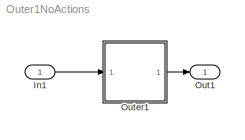
MODEL Outer1NoActions
KIND model
BLOCK [Inport] In1
  IconDisplay = Port number
  OutDataTypeStr = boolean
  SID = 8
BLOCK [Outport] Out1
  IconDisplay = Port number
  SID = 7
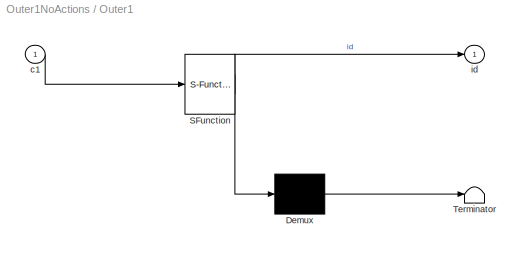
BLOCK [SubSystem] Outer1
  ErrorFcn = Stateflow.Translate.translate
  PermitHierarchicalResolution = ExplicitOnly
  Ports = [1, 1]
  RequestExecContextInheritance = off
  SFBlockType = Chart
  SID = 1
  TreatAsAtomicUnit = on
  Variant = off
BLOCK [Demux] Outer1/ Demux 
  Outputs = 1
  Ports = [1, 1]
  SID = 1::16
BLOCK [S-Function] Outer1/ SFunction 
  EnableBusSupport = on
  FunctionName = sf_sfun
  PortCounts = [1 2]
  Ports = [1, 2]
  SFcnIsStateOwnerBlock = off
  SFunctionDeploymentMode = off
  SID = 1::15
  Tag = Stateflow S-Function Outer1NoActions 1
BLOCK [Terminator] Outer1/ Terminator 
  SID = 1::17
BLOCK [Inport] Outer1/c1
  IconDisplay = Port number
  SID = 1::18
BLOCK [Outport] Outer1/id
  IconDisplay = Port number
  SID = 1::19
LINE In1:1 -> Outer1:1
LINE Outer1/ Demux :1 -> Outer1/ Terminator :1
LINE Outer1/ SFunction :1 -> Outer1/ Demux :1
LINE Outer1/ SFunction :2 -> Outer1/id:1
LINE Outer1/c1:1 -> Outer1/ SFunction :1
LINE Outer1:1 -> Out1:1
CHART Outer1 states=1 transitions=2
  STATE_LABEL 'A/\\nen: id=1;'
